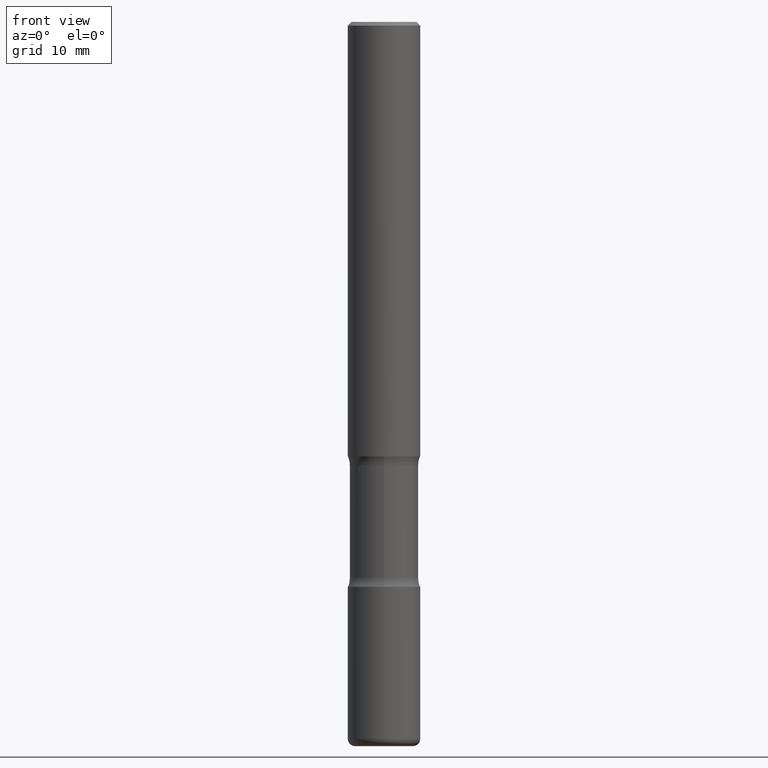
[diagram: clean part render]
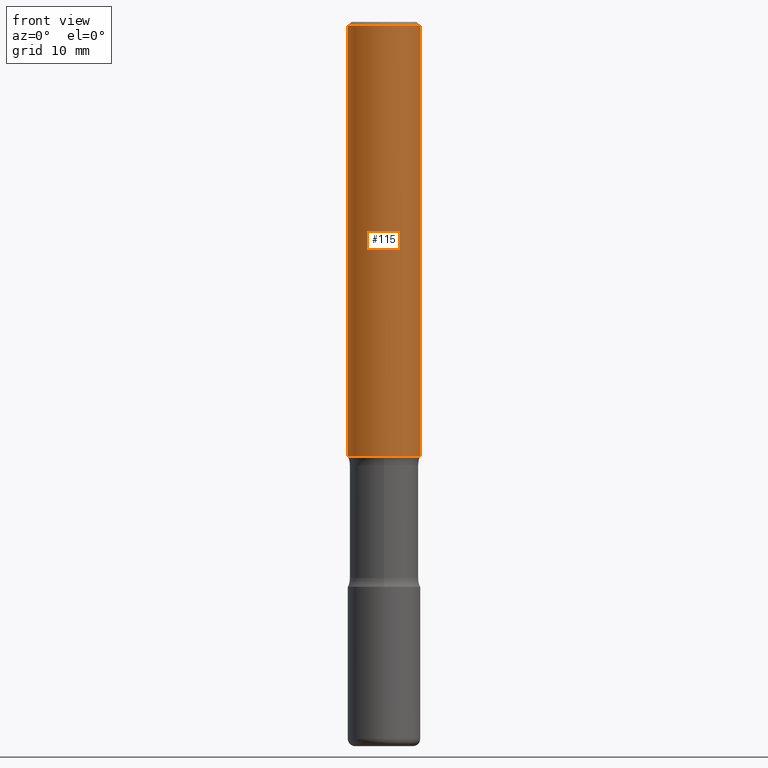
[diagram: same view with one face highlighted and labeled with its STEP entity id]
A machine part, front view. The second image highlights one B-rep face of the part: STEP entity #115.
In plain terms, the highlighted cylindrical surface (edge-blend (fillet) strip) has radius 5 mm, axis along (-0, 0, 1).
Its self-contained STEP definition (entity closure, byte-faithful):
#11 = LINE ( 'NONE', #540, #400 ) ;
#17 = CARTESIAN_POINT ( 'NONE',  ( 5.776686413970529753E-29, -8.247577218615279626E-15, -2.362200000000000077 ) ) ;
#18 = CARTESIAN_POINT ( 'NONE',  ( 0.000000000000000000, 0.000000000000000000, 0.000000000000000000 ) ) ;
#36 = EDGE_LOOP ( 'NONE', ( #80, #137, #386, #458 ) ) ;
#49 = EDGE_CURVE ( 'NONE', #466, #129, #11, .T. ) ;
#57 = EDGE_CURVE ( 'NONE', #129, #316, #247, .T. ) ;
#74 = EDGE_CURVE ( 'NONE', #466, #421, #269, .T. ) ;
#80 = ORIENTED_EDGE ( 'NONE', *, *, #49, .F. ) ;
#107 = DIRECTION ( 'NONE',  ( -2.445468806185136877E-29, 3.491481338843145188E-15, 1.000000000000000000 ) ) ;
#108 = CYLINDRICAL_SURFACE ( 'NONE', #191, 0.1968500000000000527 ) ;
#114 = DIRECTION ( 'NONE',  ( 1.000000000000000000, -6.982962677686266711E-15, 0.000000000000000000 ) ) ;
#115 = ADVANCED_FACE ( 'NONE', ( #369 ), #108, .T. ) ;
#129 = VERTEX_POINT ( 'NONE', #278 ) ;
#137 = ORIENTED_EDGE ( 'NONE', *, *, #74, .T. ) ;
#191 = AXIS2_PLACEMENT_3D ( 'NONE', #18, #487, #538 ) ;
#202 = CARTESIAN_POINT ( 'NONE',  ( 0.1968499999999999417, -1.420318657638188727E-15, -0.02000000000000006981 ) ) ;
#247 = CIRCLE ( 'NONE', #437, 0.1968499999999999417 ) ;
#258 = AXIS2_PLACEMENT_3D ( 'NONE', #17, #451, #276 ) ;
#269 = CIRCLE ( 'NONE', #258, 0.1968500000000001082 ) ;
#276 = DIRECTION ( 'NONE',  ( 1.000000000000000000, -6.982962677686265133E-15, 0.000000000000000000 ) ) ;
#278 = CARTESIAN_POINT ( 'NONE',  ( -0.1968499999999999417, 1.304766576325678113E-15, -0.02000000000000006981 ) ) ;
#316 = VERTEX_POINT ( 'NONE', #202 ) ;
#343 = LINE ( 'NONE', #452, #543 ) ;
#363 = DIRECTION ( 'NONE',  ( -2.445468806185136877E-29, 3.491481338843145188E-15, 1.000000000000000000 ) ) ;
#369 = FACE_OUTER_BOUND ( 'NONE', #36, .T. ) ;
#386 = ORIENTED_EDGE ( 'NONE', *, *, #539, .T. ) ;
#400 = VECTOR ( 'NONE', #363, 39.37007874015748143 ) ;
#404 = CARTESIAN_POINT ( 'NONE',  ( 4.890937612370289799E-31, -6.982962677686315028E-17, -0.02000000000000006981 ) ) ;
#421 = VERTEX_POINT ( 'NONE', #475 ) ;
#431 = CARTESIAN_POINT ( 'NONE',  ( -0.1968500000000001360, -2.760000047352310125E-15, -2.362200000000000077 ) ) ;
#437 = AXIS2_PLACEMENT_3D ( 'NONE', #404, #492, #114 ) ;
#451 = DIRECTION ( 'NONE',  ( -2.445468806185136597E-29, 3.491481338843145583E-15, 1.000000000000000000 ) ) ;
#452 = CARTESIAN_POINT ( 'NONE',  ( 0.1968500000000000527, -1.374596203102542003E-15, 9.598753983154302260E-30 ) ) ;
#458 = ORIENTED_EDGE ( 'NONE', *, *, #57, .F. ) ;
#466 = VERTEX_POINT ( 'NONE', #431 ) ;
#475 = CARTESIAN_POINT ( 'NONE',  ( 0.1968500000000001082, -9.622173421717821235E-15, -2.362200000000000077 ) ) ;
#487 = DIRECTION ( 'NONE',  ( -2.445468806185136597E-29, 3.491481338843145583E-15, 1.000000000000000000 ) ) ;
#492 = DIRECTION ( 'NONE',  ( -2.445468806185136597E-29, 3.491481338843145583E-15, 1.000000000000000000 ) ) ;
#538 = DIRECTION ( 'NONE',  ( 1.000000000000000000, -6.982962677686266711E-15, 4.876176775795935793E-29 ) ) ;
#539 = EDGE_CURVE ( 'NONE', #421, #316, #343, .T. ) ;
#540 = CARTESIAN_POINT ( 'NONE',  ( -0.1968500000000000527, 1.398703375343757590E-15, -9.682923725166785079E-30 ) ) ;
#543 = VECTOR ( 'NONE', #107, 39.37007874015748143 ) ;